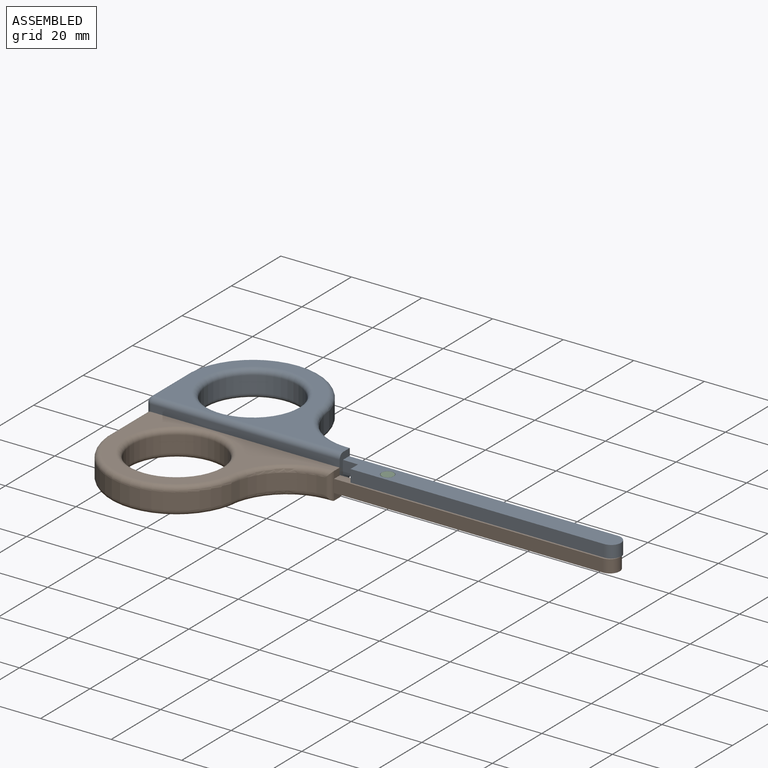
[diagram: assembled view]
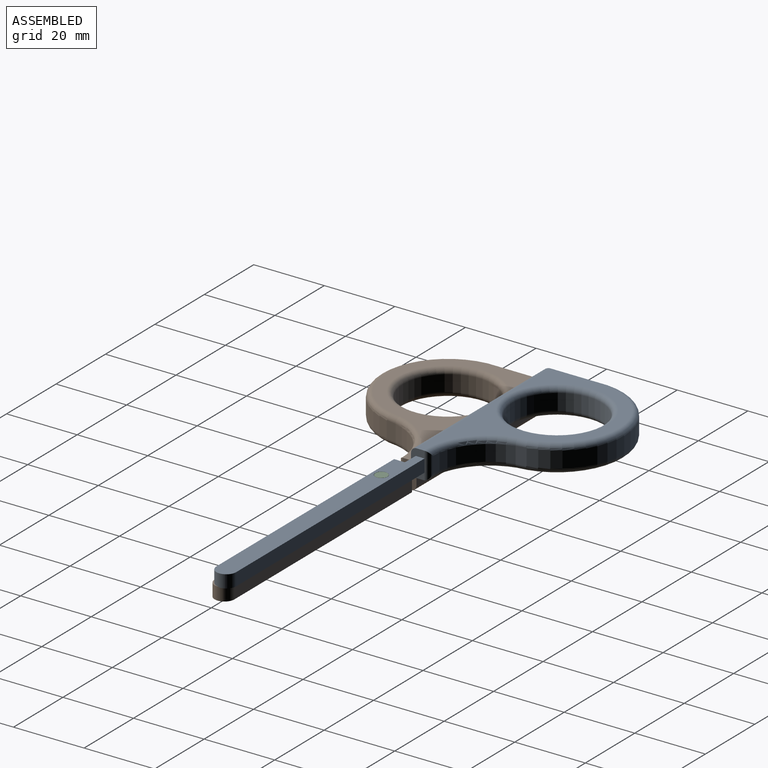
[diagram: assembled view, second angle]
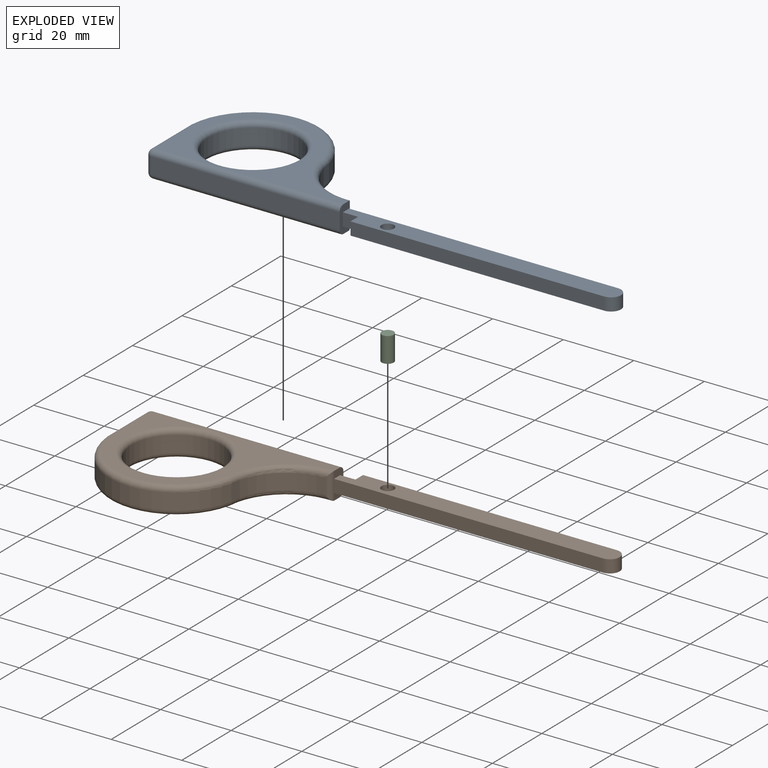
[diagram: exploded view]
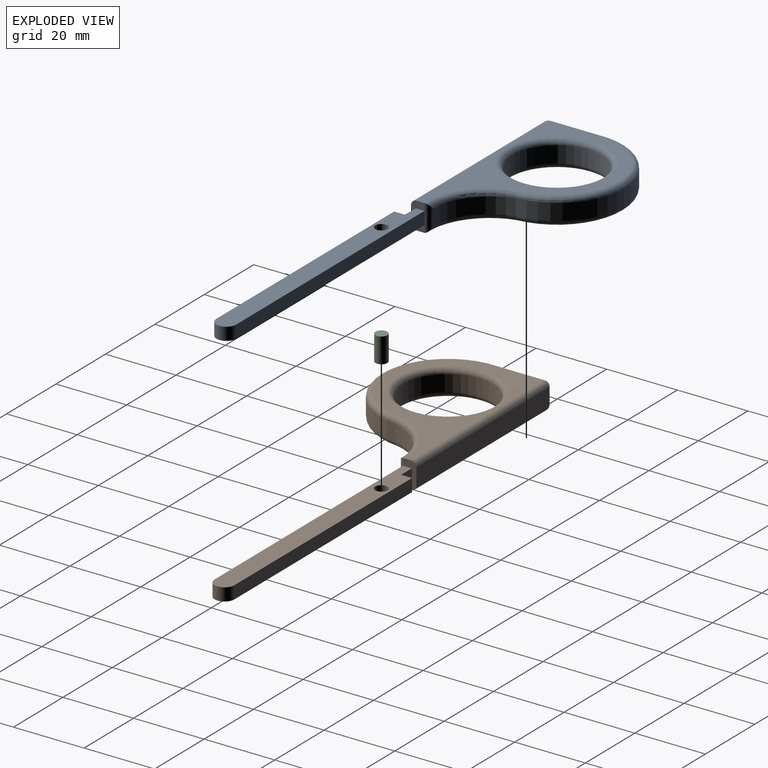
[diagram: exploded view, second angle]
ASSEMBLY  parts=3 mates=2
PART A: 30 faces, bbox 135.5x38.6x7.6 mm
  f0: plane 7.62x3.82mm, normal (1,0,0), area 19.1mm2, adj f1,f6,f7,f8,f12,f15,f16,f17
  f1: cylinder r=1.52mm len=7.6mm, axis (0,0,-1), area 13.1mm2, adj f0,f2,f11,f17,f18
  f2: cylinder r=16.51mm len=15.48mm, axis (0,0,-1), area 98.1mm2, adj f1,f3,f17,f18
  f3: cylinder r=19.05mm len=37.97mm, axis (0,0,-1), area 259.4mm2, adj f2,f4,f20,f22
  f4: plane 16.26x4.57mm, normal (-1,0,0), area 74.3mm2, adj f3,f19,f21,f29
  f5: cylinder r=12.7mm len=25.4mm, axis (0,0,-1), area 364.8mm2, adj f23,f24
  f6: plane 53.39x4.57mm, normal (0,-1,0), area 244.1mm2, adj f0,f25,f26,f29
  f7: plane 53.39x32.23mm, normal (0,0,1), area 461.6mm2, adj f0,f18,f21,f22,f24,f25
  f8: plane 53.39x32.23mm, normal (0,0,-1), area 461.6mm2, adj f0,f17,f19,f20,f23,f26
  f9: plane 71.88x3.63mm, normal (0,-1,0), area 261.1mm2, adj f10,f14,f15,f16
  f10: cylinder r=2.79mm len=5.59mm, axis (0,0,-1), area 31.9mm2, adj f9,f11,f15,f16
  f11: plane 76.2x3.63mm, normal (0,1,0), area 276.8mm2, adj f1,f10,f15,f16
  f12: plane 4.32x3.63mm, normal (-0.02,-1,0), area 15.7mm2, adj f0,f14,f15,f16
  f13: cylinder r=1.77mm len=3.63mm, axis (0,0,-1), area 40.4mm2, adj f15,f16
  f14: plane 3.63x3.04mm, normal (-1,0,0), area 11mm2, adj f9,f12,f15,f16
  f15: plane 78.99x5.59mm, normal (0,0,1), area 415mm2, adj f0,f9,f10,f11,f12,f13,f14
  f16: plane 78.99x5.59mm, normal (0,0,-1), area 415mm2, adj f0,f9,f10,f11,f12,f13,f14
  f17: torus R=18.03mm, axis (0,0,1), area 55.5mm2, adj f0,f1,f2,f8,f20
  f18: torus R=18.03mm, axis (0,0,1), area 55.5mm2, adj f0,f1,f2,f7,f22
  f19: cylinder r=1.52mm len=16.26mm, axis (0,-1,0), area 38.8mm2, adj f4,f8,f20,f28
  f20: torus R=17.53mm, axis (0,0,1), area 132mm2, adj f3,f8,f17,f19
  f21: cylinder r=1.52mm len=16.26mm, axis (0,1,0), area 38.8mm2, adj f4,f7,f22,f27
  f22: torus R=17.53mm, axis (0,0,1), area 132mm2, adj f3,f7,f18,f21
  f23: torus R=14.22mm, axis (0,0,1), area 199.4mm2, adj f5,f8
  f24: torus R=14.22mm, axis (0,0,1), area 199.4mm2, adj f5,f7
  f25: cylinder r=1.52mm len=53.39mm, axis (-1,0,0), area 127.8mm2, adj f0,f6,f7,f27
  f26: cylinder r=1.52mm len=53.39mm, axis (1,0,0), area 127.8mm2, adj f0,f6,f8,f28
  f27: sphere r=1.52mm, area 3.6mm2, adj f21,f25,f29
  f28: sphere r=1.52mm, area 3.6mm2, adj f19,f26,f29
  f29: cylinder r=1.52mm len=4.57mm, axis (0,0,1), area 10.9mm2, adj f4,f6,f27,f28
PART B: 30 faces, bbox 135.5x38.6x7.6 mm
  f0: plane 7.62x3.82mm, normal (1,0,0), area 19.1mm2, adj f1,f6,f7,f8,f12,f15,f16,f17
  f1: cylinder r=1.52mm len=7.6mm, axis (0,0,1), area 13.1mm2, adj f0,f2,f11,f17,f18
  f2: cylinder r=16.51mm len=15.48mm, axis (0,0,1), area 98.1mm2, adj f1,f3,f17,f18
  f3: cylinder r=19.05mm len=37.97mm, axis (0,0,1), area 259.4mm2, adj f2,f4,f20,f22
  f4: plane 16.26x4.57mm, normal (-1,0,0), area 74.3mm2, adj f3,f19,f21,f29
  f5: cylinder r=12.7mm len=25.4mm, axis (0,0,1), area 364.8mm2, adj f23,f24
  f6: plane 53.39x4.57mm, normal (0,1,0), area 244.1mm2, adj f0,f25,f26,f29
  f7: plane 53.39x32.23mm, normal (0,0,-1), area 461.6mm2, adj f0,f18,f21,f22,f24,f25
  f8: plane 53.39x32.23mm, normal (0,0,1), area 461.6mm2, adj f0,f17,f19,f20,f23,f26
  f9: plane 71.88x3.63mm, normal (0,1,0), area 261.1mm2, adj f10,f14,f15,f16
  f10: cylinder r=2.79mm len=5.59mm, axis (0,0,1), area 31.9mm2, adj f9,f11,f15,f16
  f11: plane 76.2x3.63mm, normal (0,-1,0), area 276.8mm2, adj f1,f10,f15,f16
  f12: plane 4.32x3.63mm, normal (-0.02,1,0), area 15.7mm2, adj f0,f14,f15,f16
  f13: cylinder r=1.77mm len=3.63mm, axis (0,0,1), area 40.4mm2, adj f15,f16
  f14: plane 3.63x3.04mm, normal (-1,0,0), area 11mm2, adj f9,f12,f15,f16
  f15: plane 78.99x5.59mm, normal (0,0,-1), area 415mm2, adj f0,f9,f10,f11,f12,f13,f14
  f16: plane 78.99x5.59mm, normal (0,0,1), area 415mm2, adj f0,f9,f10,f11,f12,f13,f14
  f17: torus R=18.03mm, axis (0,0,-1), area 55.5mm2, adj f0,f1,f2,f8,f20
  f18: torus R=18.03mm, axis (0,0,-1), area 55.5mm2, adj f0,f1,f2,f7,f22
  f19: cylinder r=1.52mm len=16.26mm, axis (0,1,0), area 38.8mm2, adj f4,f8,f20,f28
  f20: torus R=17.53mm, axis (0,0,-1), area 132mm2, adj f3,f8,f17,f19
  f21: cylinder r=1.52mm len=16.26mm, axis (0,-1,0), area 38.8mm2, adj f4,f7,f22,f27
  f22: torus R=17.53mm, axis (0,0,-1), area 132mm2, adj f3,f7,f18,f21
  f23: torus R=14.22mm, axis (0,0,-1), area 199.4mm2, adj f5,f8
  f24: torus R=14.22mm, axis (0,0,-1), area 199.4mm2, adj f5,f7
  f25: cylinder r=1.52mm len=53.39mm, axis (-1,0,0), area 127.8mm2, adj f0,f6,f7,f27
  f26: cylinder r=1.52mm len=53.39mm, axis (1,0,0), area 127.8mm2, adj f0,f6,f8,f28
  f27: sphere r=1.52mm, area 2.3mm2, adj f21,f25,f29
  f28: sphere r=1.52mm, area 5mm2, adj f19,f26,f29
  f29: cylinder r=1.52mm len=4.57mm, axis (0,0,-1), area 10.9mm2, adj f4,f6,f27,f28
PART C: 3 faces, bbox 3.4x3.4x7.1 mm
  f0: cylinder r=1.7mm len=7.11mm, axis (0,0,-1), area 76mm2, adj f1,f2
  f1: plane 3.4x3.4mm, normal (0,0,1), area 9.1mm2, adj f0
  f2: plane 3.4x3.4mm, normal (0,0,-1), area 9.1mm2, adj f0
PLACE A t=(-36.36,-18.18,-8.56)mm
PLACE B t=(-36.36,-9.66,-12.04)mm
PLACE C t=(-23.91,-22.52,-13.86)mm
MATE revolute C.f0 <-> B.f13  axis (0,0,-1) through (-23.91,-22.52,-13.86)mm
MATE revolute A.f13 <-> C.f0  axis (0,0,1) through (-23.91,-22.52,-6.74)mm
